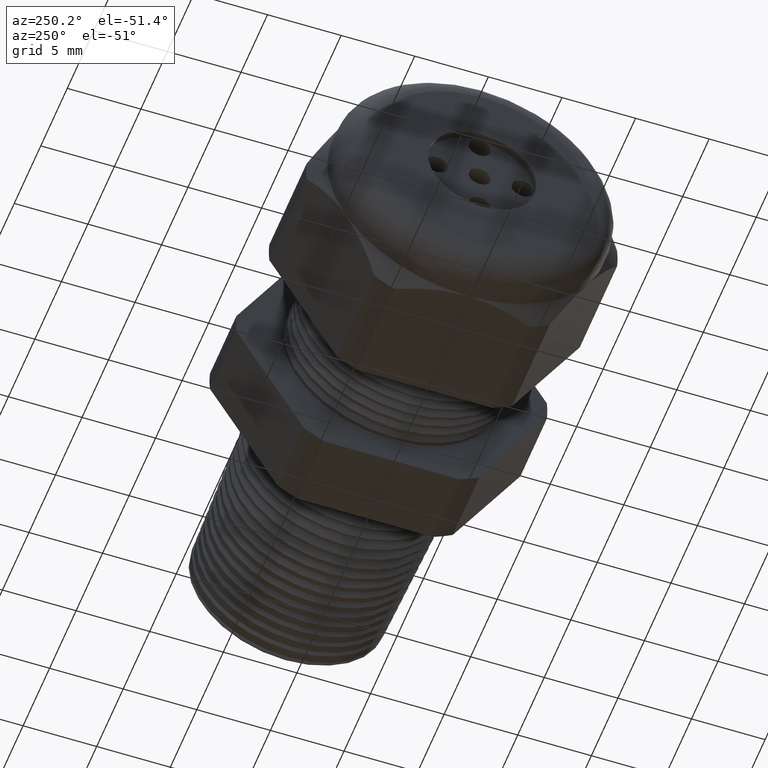
[diagram: clean part render]
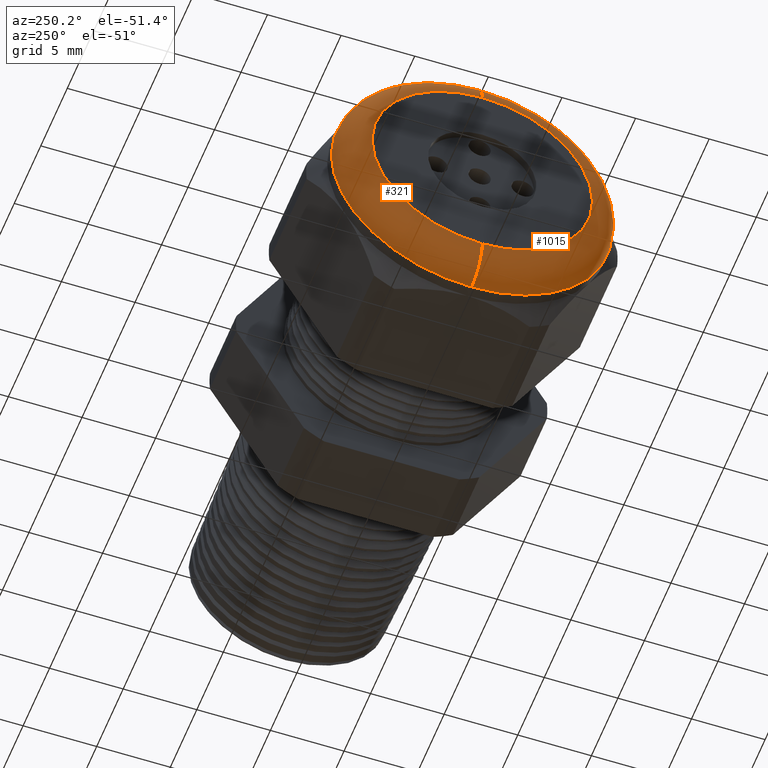
[diagram: same view with one multi-face feature highlighted, each face labeled with its STEP entity id]
A machine part, auxiliary view. The highlighted faces form ONE feature: a constant-radius fillet chain: 2 tangent blend faces with common blend radius 2.032 mm. The faces share edges in the B-rep.
Their STEP definitions:
[1] entity #321 (Torus):
#266 = EDGE_LOOP ( 'NONE', ( #322, #326, #329, #332 ) ) ;
#321 = ADVANCED_FACE ( 'NONE', ( #2489 ), #2488, .T. ) ;
#322 = ORIENTED_EDGE ( 'NONE', *, *, #323, .F. ) ;
#323 = EDGE_CURVE ( 'NONE', #324, #325, #2547, .T. ) ;
#324 = VERTEX_POINT ( 'NONE', #2542 ) ;
#325 = VERTEX_POINT ( 'NONE', #2541 ) ;
#326 = ORIENTED_EDGE ( 'NONE', *, *, #327, .T. ) ;
#327 = EDGE_CURVE ( 'NONE', #324, #328, #2540, .T. ) ;
#328 = VERTEX_POINT ( 'NONE', #2535 ) ;
#329 = ORIENTED_EDGE ( 'NONE', *, *, #330, .F. ) ;
#330 = EDGE_CURVE ( 'NONE', #331, #328, #2534, .T. ) ;
#331 = VERTEX_POINT ( 'NONE', #2529 ) ;
#332 = ORIENTED_EDGE ( 'NONE', *, *, #333, .F. ) ;
#333 = EDGE_CURVE ( 'NONE', #325, #331, #2527, .T. ) ;
#2485 = DIRECTION ( 'NONE',  ( 0.0000000000000000000, 0.0000000000000000000, 1.000000000000000000 ) ) ;
#2486 = DIRECTION ( 'NONE',  ( -1.000000000000000000, 0.0000000000000000000, 0.0000000000000000000 ) ) ;
#2487 = AXIS2_PLACEMENT_3D ( 'NONE', #2494, #2486, #2485 ) ;
#2488 = TOROIDAL_SURFACE ( 'NONE', #2487, 0.2950000000000001000, 0.08000000000000000200 ) ;
#2489 = FACE_OUTER_BOUND ( 'NONE', #266, .T. ) ;
#2494 = CARTESIAN_POINT ( 'NONE',  ( -1.100000000000000100, 0.0000000000000000000, 0.0000000000000000000 ) ) ;
#2523 = DIRECTION ( 'NONE',  ( 0.0000000000000000000, 0.0000000000000000000, -1.000000000000000000 ) ) ;
#2524 = DIRECTION ( 'NONE',  ( 0.0000000000000000000, -1.000000000000000000, 0.0000000000000000000 ) ) ;
#2525 = CARTESIAN_POINT ( 'NONE',  ( -1.100000000000000100, 0.0000000000000000000, 0.2950000000000001000 ) ) ;
#2526 = AXIS2_PLACEMENT_3D ( 'NONE', #2525, #2524, #2523 ) ;
#2527 = CIRCLE ( 'NONE', #2526, 0.08000000000000000200 ) ;
#2529 = CARTESIAN_POINT ( 'NONE',  ( -1.179999999999999900, 0.0000000000000000000, 0.2950000000000001000 ) ) ;
#2530 = DIRECTION ( 'NONE',  ( 0.0000000000000000000, 0.0000000000000000000, 1.000000000000000000 ) ) ;
#2531 = DIRECTION ( 'NONE',  ( -1.000000000000000000, 0.0000000000000000000, 0.0000000000000000000 ) ) ;
#2532 = CARTESIAN_POINT ( 'NONE',  ( -1.179999999999999900, 0.0000000000000000000, 0.0000000000000000000 ) ) ;
#2533 = AXIS2_PLACEMENT_3D ( 'NONE', #2532, #2531, #2530 ) ;
#2534 = CIRCLE ( 'NONE', #2533, 0.2950000000000001000 ) ;
#2535 = CARTESIAN_POINT ( 'NONE',  ( -1.179999999999999900, 4.102566777143634000E-017, -0.2950000000000001000 ) ) ;
#2536 = DIRECTION ( 'NONE',  ( 0.0000000000000000000, -1.224646799147353500E-016, 1.000000000000000000 ) ) ;
#2537 = DIRECTION ( 'NONE',  ( 0.0000000000000000000, 1.000000000000000000, 1.224646799147353200E-016 ) ) ;
#2538 = CARTESIAN_POINT ( 'NONE',  ( -1.100000000000000100, 3.612708057484693200E-017, -0.2950000000000001000 ) ) ;
#2539 = AXIS2_PLACEMENT_3D ( 'NONE', #2538, #2537, #2536 ) ;
#2540 = CIRCLE ( 'NONE', #2539, 0.08000000000000000200 ) ;
#2541 = CARTESIAN_POINT ( 'NONE',  ( -1.100000000000000100, 4.592425496802576100E-017, 0.3750000000000001100 ) ) ;
#2542 = CARTESIAN_POINT ( 'NONE',  ( -1.100000000000000100, 0.0000000000000000000, -0.3750000000000001100 ) ) ;
#2543 = DIRECTION ( 'NONE',  ( 0.0000000000000000000, 0.0000000000000000000, 1.000000000000000000 ) ) ;
#2544 = DIRECTION ( 'NONE',  ( 1.000000000000000000, 0.0000000000000000000, 0.0000000000000000000 ) ) ;
#2545 = CARTESIAN_POINT ( 'NONE',  ( -1.100000000000000100, 0.0000000000000000000, 0.0000000000000000000 ) ) ;
#2546 = AXIS2_PLACEMENT_3D ( 'NONE', #2545, #2544, #2543 ) ;
#2547 = CIRCLE ( 'NONE', #2546, 0.3750000000000001100 ) ;
[2] entity #1015 (Torus):
#324 = VERTEX_POINT ( 'NONE', #2542 ) ;
#325 = VERTEX_POINT ( 'NONE', #2541 ) ;
#327 = EDGE_CURVE ( 'NONE', #324, #328, #2540, .T. ) ;
#328 = VERTEX_POINT ( 'NONE', #2535 ) ;
#331 = VERTEX_POINT ( 'NONE', #2529 ) ;
#333 = EDGE_CURVE ( 'NONE', #325, #331, #2527, .T. ) ;
#784 = EDGE_CURVE ( 'NONE', #325, #324, #3459, .T. ) ;
#855 = EDGE_CURVE ( 'NONE', #328, #331, #3595, .T. ) ;
#1015 = ADVANCED_FACE ( 'NONE', ( #3771 ), #3770, .T. ) ;
#2523 = DIRECTION ( 'NONE',  ( 0.0000000000000000000, 0.0000000000000000000, -1.000000000000000000 ) ) ;
#2524 = DIRECTION ( 'NONE',  ( 0.0000000000000000000, -1.000000000000000000, 0.0000000000000000000 ) ) ;
#2525 = CARTESIAN_POINT ( 'NONE',  ( -1.100000000000000100, 0.0000000000000000000, 0.2950000000000001000 ) ) ;
#2526 = AXIS2_PLACEMENT_3D ( 'NONE', #2525, #2524, #2523 ) ;
#2527 = CIRCLE ( 'NONE', #2526, 0.08000000000000000200 ) ;
#2529 = CARTESIAN_POINT ( 'NONE',  ( -1.179999999999999900, 0.0000000000000000000, 0.2950000000000001000 ) ) ;
#2535 = CARTESIAN_POINT ( 'NONE',  ( -1.179999999999999900, 4.102566777143634000E-017, -0.2950000000000001000 ) ) ;
#2536 = DIRECTION ( 'NONE',  ( 0.0000000000000000000, -1.224646799147353500E-016, 1.000000000000000000 ) ) ;
#2537 = DIRECTION ( 'NONE',  ( 0.0000000000000000000, 1.000000000000000000, 1.224646799147353200E-016 ) ) ;
#2538 = CARTESIAN_POINT ( 'NONE',  ( -1.100000000000000100, 3.612708057484693200E-017, -0.2950000000000001000 ) ) ;
#2539 = AXIS2_PLACEMENT_3D ( 'NONE', #2538, #2537, #2536 ) ;
#2540 = CIRCLE ( 'NONE', #2539, 0.08000000000000000200 ) ;
#2541 = CARTESIAN_POINT ( 'NONE',  ( -1.100000000000000100, 4.592425496802576100E-017, 0.3750000000000001100 ) ) ;
#2542 = CARTESIAN_POINT ( 'NONE',  ( -1.100000000000000100, 0.0000000000000000000, -0.3750000000000001100 ) ) ;
#3455 = DIRECTION ( 'NONE',  ( 0.0000000000000000000, 0.0000000000000000000, 1.000000000000000000 ) ) ;
#3456 = DIRECTION ( 'NONE',  ( 1.000000000000000000, 0.0000000000000000000, 0.0000000000000000000 ) ) ;
#3457 = CARTESIAN_POINT ( 'NONE',  ( -1.100000000000000100, 0.0000000000000000000, 0.0000000000000000000 ) ) ;
#3458 = AXIS2_PLACEMENT_3D ( 'NONE', #3457, #3456, #3455 ) ;
#3459 = CIRCLE ( 'NONE', #3458, 0.3750000000000001100 ) ;
#3591 = DIRECTION ( 'NONE',  ( 0.0000000000000000000, 0.0000000000000000000, 1.000000000000000000 ) ) ;
#3592 = DIRECTION ( 'NONE',  ( -1.000000000000000000, 0.0000000000000000000, 0.0000000000000000000 ) ) ;
#3593 = CARTESIAN_POINT ( 'NONE',  ( -1.179999999999999900, 0.0000000000000000000, 0.0000000000000000000 ) ) ;
#3594 = AXIS2_PLACEMENT_3D ( 'NONE', #3593, #3592, #3591 ) ;
#3595 = CIRCLE ( 'NONE', #3594, 0.2950000000000001000 ) ;
#3767 = DIRECTION ( 'NONE',  ( 0.0000000000000000000, 0.0000000000000000000, 1.000000000000000000 ) ) ;
#3768 = DIRECTION ( 'NONE',  ( -1.000000000000000000, 0.0000000000000000000, 0.0000000000000000000 ) ) ;
#3769 = AXIS2_PLACEMENT_3D ( 'NONE', #3775, #3768, #3767 ) ;
#3770 = TOROIDAL_SURFACE ( 'NONE', #3769, 0.2950000000000001000, 0.08000000000000000200 ) ;
#3771 = FACE_OUTER_BOUND ( 'NONE', #5608, .T. ) ;
#3775 = CARTESIAN_POINT ( 'NONE',  ( -1.100000000000000100, 0.0000000000000000000, 0.0000000000000000000 ) ) ;
#5589 = ORIENTED_EDGE ( 'NONE', *, *, #855, .F. ) ;
#5591 = ORIENTED_EDGE ( 'NONE', *, *, #333, .T. ) ;
#5597 = ORIENTED_EDGE ( 'NONE', *, *, #784, .F. ) ;
#5600 = ORIENTED_EDGE ( 'NONE', *, *, #327, .F. ) ;
#5608 = EDGE_LOOP ( 'NONE', ( #5600, #5597, #5591, #5589 ) ) ;